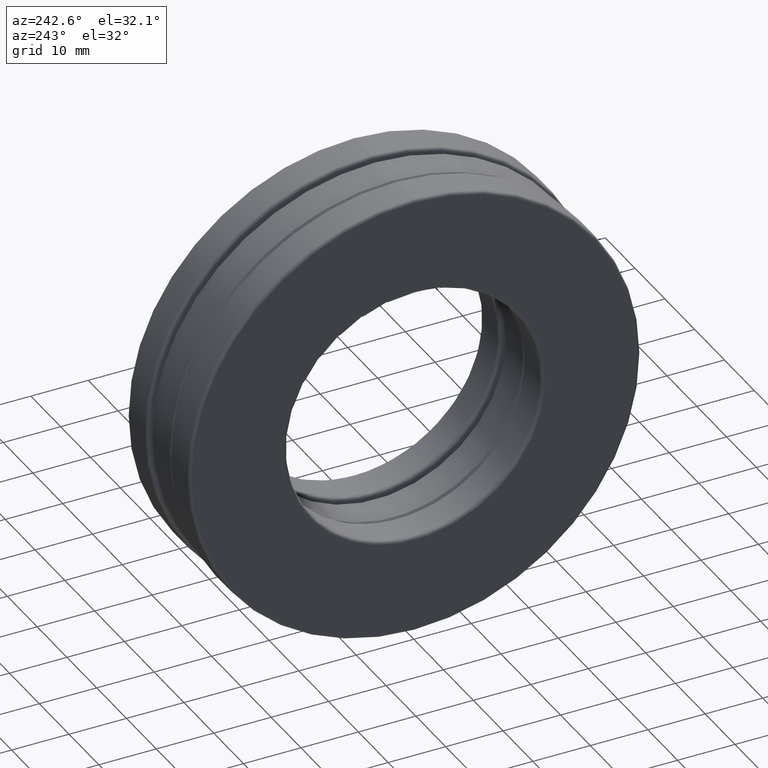
[diagram: clean part render]
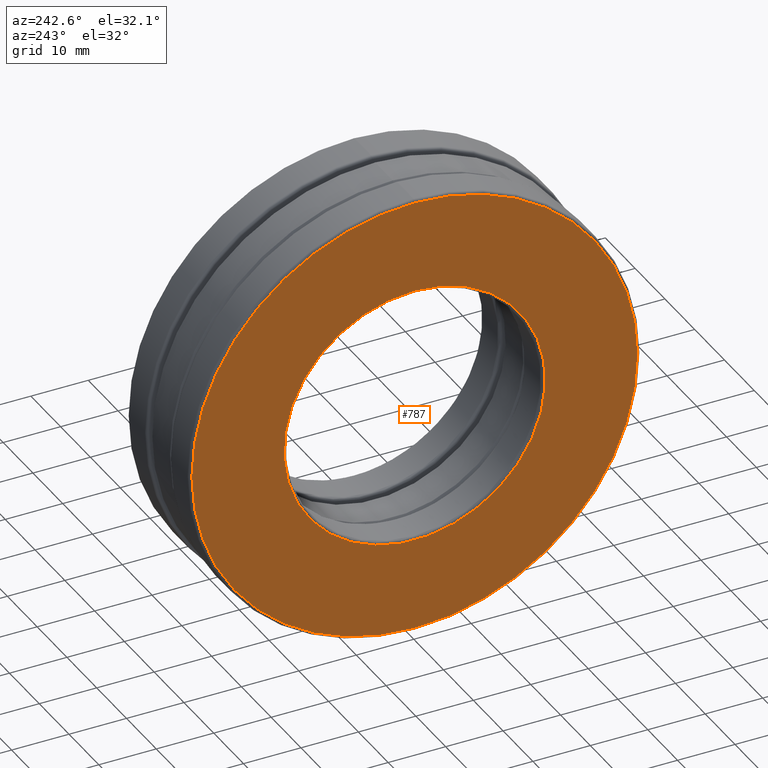
[diagram: same view with one face highlighted and labeled with its STEP entity id]
A machine part, auxiliary view. The second image highlights one B-rep face of the part: STEP entity #787.
In plain terms, the highlighted planar face has unit normal (1, 0, 0).
Its self-contained STEP definition (entity closure, byte-faithful):
#29 = EDGE_CURVE ( 'NONE', #140, #140, #573, .T. ) ;
#47 = CARTESIAN_POINT ( 'NONE',  ( -0.4060000000000000300, 0.0000000000000000000, 0.0000000000000000000 ) ) ;
#119 = AXIS2_PLACEMENT_3D ( 'NONE', #1297, #855, #181 ) ;
#140 = VERTEX_POINT ( 'NONE', #336 ) ;
#181 = DIRECTION ( 'NONE',  ( 0.0000000000000000000, 0.0000000000000000000, 1.000000000000000000 ) ) ;
#259 = AXIS2_PLACEMENT_3D ( 'NONE', #47, #1389, #1169 ) ;
#336 = CARTESIAN_POINT ( 'NONE',  ( -0.4060000000000000300, 0.0000000000000000000, 0.8950000000000000200 ) ) ;
#339 = AXIS2_PLACEMENT_3D ( 'NONE', #874, #1210, #1215 ) ;
#431 = CARTESIAN_POINT ( 'NONE',  ( -0.4059999999999999200, 0.0000000000000000000, 1.526875000000000400 ) ) ;
#436 = FACE_OUTER_BOUND ( 'NONE', #711, .T. ) ;
#573 = CIRCLE ( 'NONE', #259, 0.8950000000000000200 ) ;
#681 = EDGE_CURVE ( 'NONE', #1450, #1450, #1392, .T. ) ;
#711 = EDGE_LOOP ( 'NONE', ( #1328 ) ) ;
#787 = ADVANCED_FACE ( 'NONE', ( #1409, #436 ), #1327, .F. ) ;
#855 = DIRECTION ( 'NONE',  ( -1.000000000000000000, -0.0000000000000000000, -0.0000000000000000000 ) ) ;
#874 = CARTESIAN_POINT ( 'NONE',  ( -0.4059999999999999700, 8.776500774897653800E-017, 0.0000000000000000000 ) ) ;
#1046 = ORIENTED_EDGE ( 'NONE', *, *, #29, .F. ) ;
#1169 = DIRECTION ( 'NONE',  ( 0.0000000000000000000, 0.0000000000000000000, 1.000000000000000000 ) ) ;
#1210 = DIRECTION ( 'NONE',  ( 1.000000000000000000, 0.0000000000000000000, 0.0000000000000000000 ) ) ;
#1215 = DIRECTION ( 'NONE',  ( 0.0000000000000000000, 0.0000000000000000000, -1.000000000000000000 ) ) ;
#1292 = EDGE_LOOP ( 'NONE', ( #1046 ) ) ;
#1297 = CARTESIAN_POINT ( 'NONE',  ( -0.4059999999999999200, 0.0000000000000000000, 0.0000000000000000000 ) ) ;
#1327 = PLANE ( 'NONE',  #339 ) ;
#1328 = ORIENTED_EDGE ( 'NONE', *, *, #681, .T. ) ;
#1389 = DIRECTION ( 'NONE',  ( -1.000000000000000000, -0.0000000000000000000, -0.0000000000000000000 ) ) ;
#1392 = CIRCLE ( 'NONE', #119, 1.526875000000000400 ) ;
#1409 = FACE_BOUND ( 'NONE', #1292, .T. ) ;
#1450 = VERTEX_POINT ( 'NONE', #431 ) ;